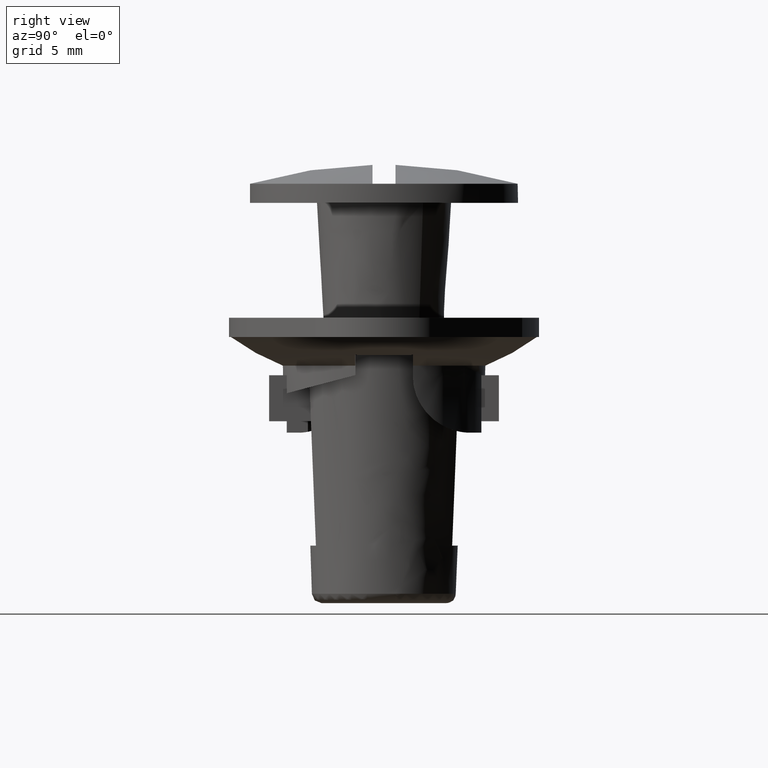
[diagram: clean part render]
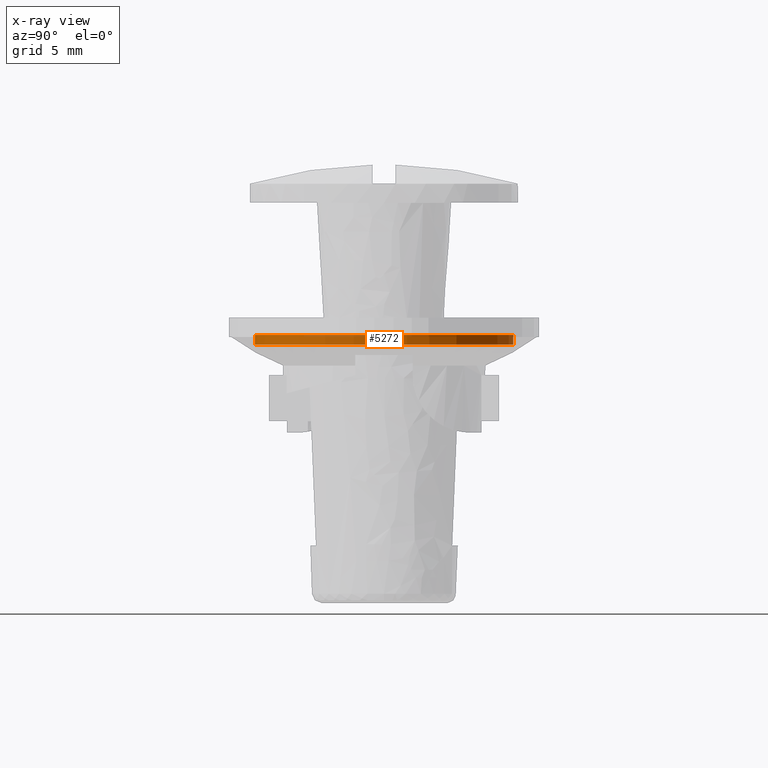
[diagram: x-ray — body ghosted, one internal face saturated and labeled with its STEP entity id]
A machine part, right view, then the same camera in x-ray: the body is ghosted and one INTERNAL B-rep face — a face not visible from any outside direction — is saturated and labeled: STEP entity #5272.
In plain terms, the highlighted face is a freeform B-spline surface patch.
Its self-contained STEP definition (entity closure, byte-faithful):
#4689=CARTESIAN_POINT('',(0.200000000000000,6.747036386444050,-7.900000000000000));
#4690=VERTEX_POINT('',#4689);
#4698=CARTESIAN_POINT('',(0.200000000000000,6.747036386444050,-8.400000000000000));
#4699=VERTEX_POINT('',#4698);
#4700=CARTESIAN_POINT('',(0.200000000000000,6.747036386444050,-8.400000000000000));
#4701=CARTESIAN_POINT('',(0.200000000000000,6.747036386444050,-7.900000000000000));
#4702=QUASI_UNIFORM_CURVE('',1,(#4700,#4701),.UNSPECIFIED.,.F.,.U.);
#4703=EDGE_CURVE('',#4699,#4690,#4702,.T.);
#4830=CARTESIAN_POINT('',(0.200000000000000,-6.747036386444050,-7.900000000000000));
#4831=VERTEX_POINT('',#4830);
#4846=CARTESIAN_POINT('',(0.200000000000000,-6.747036386444050,-8.400000000000000));
#4847=VERTEX_POINT('',#4846);
#4853=CARTESIAN_POINT('',(0.200000000000000,-6.747036386444050,-8.400000000000000));
#4854=CARTESIAN_POINT('',(0.200000000000000,-6.747036386444050,-7.900000000000000));
#4855=QUASI_UNIFORM_CURVE('',1,(#4853,#4854),.UNSPECIFIED.,.F.,.U.);
#4856=EDGE_CURVE('',#4847,#4831,#4855,.T.);
#5172=CARTESIAN_POINT('',(6.749999999999976,-0.000000562524917,-8.399999999999912));
#5173=VERTEX_POINT('',#5172);
#5174=CARTESIAN_POINT('',(0.200000000000000,6.747036386444050,-8.400000000000000));
#5175=CARTESIAN_POINT('',(0.755138837121198,6.730739636928282,-8.400000000000038));
#5176=CARTESIAN_POINT('',(1.577923151263064,6.603569742157807,-8.399999999999896));
#5177=CARTESIAN_POINT('',(2.538523690610752,6.267319948871035,-8.400000000000038));
#5178=CARTESIAN_POINT('',(3.274844331036625,5.921593189638258,-8.399999999999940));
#5179=CARTESIAN_POINT('',(3.988827466100851,5.474550885893482,-8.399999999999947));
#5180=CARTESIAN_POINT('',(4.723576670825683,4.850762086330193,-8.399999999999945));
#5181=CARTESIAN_POINT('',(5.340293239274259,4.163642826246969,-8.399999999999922));
#5182=CARTESIAN_POINT('',(5.871442740998040,3.375461221042469,-8.399999999999963));
#5183=CARTESIAN_POINT('',(6.309951604882754,2.471192218125555,-8.399999999999702));
#5184=CARTESIAN_POINT('',(6.657110785607835,1.340960104100343,-8.400000000000725));
#5185=CARTESIAN_POINT('',(6.750086106587830,0.487636957763231,-8.399999999998629));
#5186=CARTESIAN_POINT('',(6.749999999999976,-0.000000562524917,-8.399999999999912));
#5187=B_SPLINE_CURVE_WITH_KNOTS('',3,(#5174,#5175,#5176,#5177,#5178,#5179,#5180,#5181,#5182,#5183,#5184,#5185,#5186),.UNSPECIFIED.,.F.,.U.,(4,1,1,1,1,1,1,1,1,1,4),(0.000000021476328,1.666082797242272,2.478806874864858,3.047715291872049,4.104256116146362,4.998258611349261,5.932873401119182,6.867508827466470,7.842782980823067,8.939966310652720,10.402862202120559),.UNSPECIFIED.);
#5188=EDGE_CURVE('',#4699,#5173,#5187,.T.);
#5190=CARTESIAN_POINT('',(6.749999999999976,-0.000000562524917,-8.399999999999912));
#5191=CARTESIAN_POINT('',(6.750084297124534,-0.487641948203157,-8.399999999999922));
#5192=CARTESIAN_POINT('',(6.663001482414668,-1.286777933130746,-8.399999999999894));
#5193=CARTESIAN_POINT('',(6.337438094780394,-2.394031364326568,-8.399999999999935));
#5194=CARTESIAN_POINT('',(5.903752841948534,-3.331153586213469,-8.399999999999922));
#5195=CARTESIAN_POINT('',(5.349322696219277,-4.153843581616572,-8.399999999999926));
#5196=CARTESIAN_POINT('',(4.667252764784784,-4.909221048797172,-8.399999999999951));
#5197=CARTESIAN_POINT('',(3.924034043973802,-5.524945898750502,-8.399999999999951));
#5198=CARTESIAN_POINT('',(3.119651442697099,-6.005266207606973,-8.399999999999956));
#5199=CARTESIAN_POINT('',(2.225838814629220,-6.399041397576946,-8.399999999999979));
#5200=CARTESIAN_POINT('',(1.268021461335367,-6.661456713390777,-8.399999999999983));
#5201=CARTESIAN_POINT('',(0.524945735844878,-6.737415333878634,-8.400000000000006));
#5202=CARTESIAN_POINT('',(0.200000000000000,-6.747036386444050,-8.400000000000000));
#5203=B_SPLINE_CURVE_WITH_KNOTS('',3,(#5190,#5191,#5192,#5193,#5194,#5195,#5196,#5197,#5198,#5199,#5200,#5201,#5202),.UNSPECIFIED.,.F.,.U.,(4,1,1,1,1,1,1,1,1,1,4),(0.000000021469891,1.462902410817849,2.397534412126184,3.454075315842710,4.551257700472082,5.363961182479901,6.501786145142342,7.436420089210631,8.167871540221258,9.427592956623254,10.402861077065650),.UNSPECIFIED.);
#5204=EDGE_CURVE('',#5173,#4847,#5203,.T.);
#5213=CARTESIAN_POINT('',(-0.023314642275817,-6.749959735246983,-7.887500000000000));
#5214=CARTESIAN_POINT('',(-0.023314642275817,-6.749959735246983,-8.412812500000001));
#5215=CARTESIAN_POINT('',(6.905712844704419,-6.773892885001145,-7.887499999999999));
#5216=CARTESIAN_POINT('',(6.905712844704419,-6.773892885001145,-8.412812500000001));
#5217=CARTESIAN_POINT('',(6.748256998815389,0.153386694139583,-7.887500000000000));
#5218=CARTESIAN_POINT('',(6.748256998815389,0.153386694139583,-8.412812500000001));
#5219=CARTESIAN_POINT('',(6.590801152926360,7.080666273280311,-7.887499999999999));
#5220=CARTESIAN_POINT('',(6.590801152926360,7.080666273280311,-8.412812500000001));
#5221=CARTESIAN_POINT('',(-0.329982906976656,6.741929344119766,-7.887500000000000));
#5222=CARTESIAN_POINT('',(-0.329982906976656,6.741929344119766,-8.412812500000001));
#5230=(BOUNDED_SURFACE()B_SPLINE_SURFACE(1,2,((#5213,#5215,#5217,#5219,#5221),(#5214,#5216,#5218,#5220,#5222)),.UNSPECIFIED.,.F.,.F.,.U.)B_SPLINE_SURFACE_WITH_KNOTS((2,2),(3,2,3),(0.0,1.0),(0.0,11.391365972376320,22.782731944752641),.UNSPECIFIED.)GEOMETRIC_REPRESENTATION_ITEM()RATIONAL_B_SPLINE_SURFACE(((1.0,0.697790459841680,1.0,0.697790459841680,1.0),(1.0,0.697790459841680,1.0,0.697790459841680,1.0)))REPRESENTATION_ITEM('')SURFACE());
#5231=ORIENTED_EDGE('',*,*,#5204,.F.);
#5232=ORIENTED_EDGE('',*,*,#5188,.F.);
#5233=ORIENTED_EDGE('',*,*,#4703,.T.);
#5234=CARTESIAN_POINT('',(6.749999999999976,-0.000000562524917,-7.900000000000000));
#5235=VERTEX_POINT('',#5234);
#5236=CARTESIAN_POINT('',(0.200000000000000,6.747036386444050,-7.900000000000000));
#5237=CARTESIAN_POINT('',(0.619726189293744,6.734637669150007,-7.900000000000015));
#5238=CARTESIAN_POINT('',(1.308300263341922,6.649476779376548,-7.899999999999999));
#5239=CARTESIAN_POINT('',(2.365735468145761,6.349459593297158,-7.899999999999999));
#5240=CARTESIAN_POINT('',(3.380896673447944,5.887669737076834,-7.900000000000023));
#5241=CARTESIAN_POINT('',(4.326587044002187,5.221596752631209,-7.899999999999998));
#5242=CARTESIAN_POINT('',(5.089774561384327,4.467856705891876,-7.900000000000000));
#5243=CARTESIAN_POINT('',(5.665232039422902,3.711162348877743,-7.900000000000000));
#5244=CARTESIAN_POINT('',(6.128142208851117,2.881059872997890,-7.900000000000017));
#5245=CARTESIAN_POINT('',(6.486806578306395,1.957035271182094,-7.899999999999885));
#5246=CARTESIAN_POINT('',(6.703046684359972,0.988809079602419,-7.900000000000349));
#5247=CARTESIAN_POINT('',(6.750008523732647,0.311539651928889,-7.899999999999568));
#5248=CARTESIAN_POINT('',(6.749999999999976,-0.000000562524917,-7.900000000000000));
#5249=B_SPLINE_CURVE_WITH_KNOTS('',3,(#5236,#5237,#5238,#5239,#5240,#5241,#5242,#5243,#5244,#5245,#5246,#5247,#5248),.UNSPECIFIED.,.F.,.U.,(4,1,1,1,1,1,1,1,1,1,4),(0.000000021476328,1.259720471945867,2.072444465969175,3.291534948174379,4.591899958269077,5.526518534348041,6.501786848304340,7.436420893450677,8.371053767900808,9.468239466856112,10.402862202120559),.UNSPECIFIED.);
#5250=EDGE_CURVE('',#4690,#5235,#5249,.T.);
#5251=ORIENTED_EDGE('',*,*,#5250,.T.);
#5252=CARTESIAN_POINT('',(6.749999999999976,-0.000000562524917,-7.900000000000000));
#5253=CARTESIAN_POINT('',(6.750023260326984,-0.352180387633600,-7.899999999999998));
#5254=CARTESIAN_POINT('',(6.701118823085785,-0.975259579221027,-7.900000000000008));
#5255=CARTESIAN_POINT('',(6.488122860097122,-1.942698704341090,-7.899999999999995));
#5256=CARTESIAN_POINT('',(6.164134197092739,-2.808176718235964,-7.900000000000012));
#5257=CARTESIAN_POINT('',(5.765236617115294,-3.533669828744939,-7.899999999999970));
#5258=CARTESIAN_POINT('',(5.333458530227872,-4.158029324272364,-7.900000000000020));
#5259=CARTESIAN_POINT('',(4.749225462994522,-4.837303756284053,-7.899999999999989));
#5260=CARTESIAN_POINT('',(3.969411350963072,-5.495294132600820,-7.900000000000011));
#5261=CARTESIAN_POINT('',(3.073566604329779,-6.033903960782871,-7.899999999999999));
#5262=CARTESIAN_POINT('',(2.273988273541957,-6.374678886489090,-7.899999999999999));
#5263=CARTESIAN_POINT('',(1.308272321573255,-6.648677491101069,-7.900000000000007));
#5264=CARTESIAN_POINT('',(0.633268085375102,-6.734250323758952,-7.899999999999999));
#5265=CARTESIAN_POINT('',(0.200000000000000,-6.747036386444050,-7.900000000000000));
#5266=B_SPLINE_CURVE_WITH_KNOTS('',3,(#5252,#5253,#5254,#5255,#5256,#5257,#5258,#5259,#5260,#5261,#5262,#5263,#5264,#5265),.UNSPECIFIED.,.F.,.U.,(4,1,1,1,1,1,1,1,1,1,1,4),(0.000000021469891,1.056537612095282,1.869263273495823,2.966443197166325,3.819807706422586,4.348079430873236,5.242053025314855,6.501786145142342,7.395781660836748,8.371052862582065,9.102505484291264,10.402861077065650),.UNSPECIFIED.);
#5267=EDGE_CURVE('',#5235,#4831,#5266,.T.);
#5268=ORIENTED_EDGE('',*,*,#5267,.T.);
#5269=ORIENTED_EDGE('',*,*,#4856,.F.);
#5270=EDGE_LOOP('',(#5231,#5232,#5233,#5251,#5268,#5269));
#5271=FACE_OUTER_BOUND('',#5270,.T.);
#5272=ADVANCED_FACE('',(#5271),#5230,.T.);